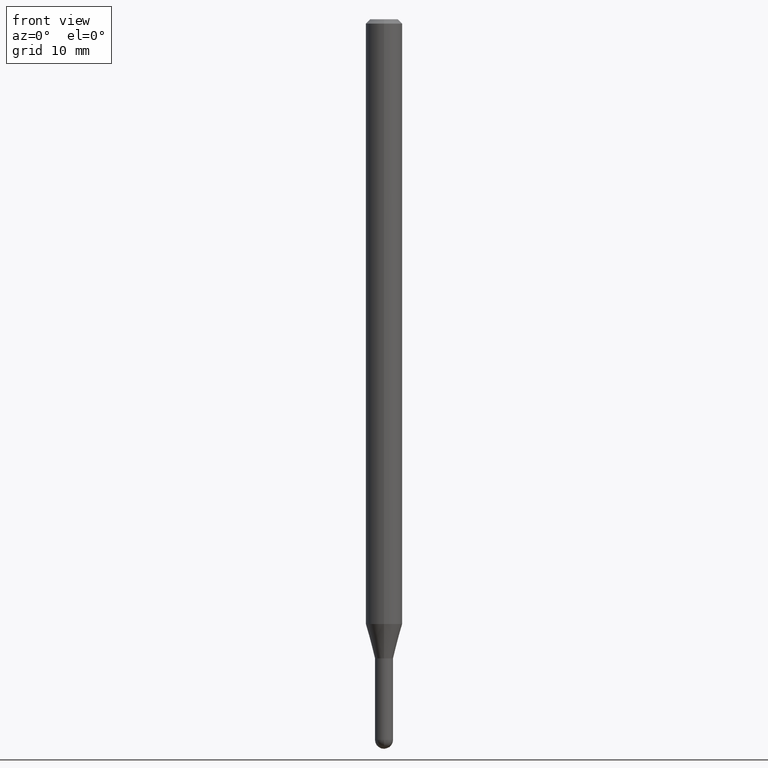
[diagram: clean part render]
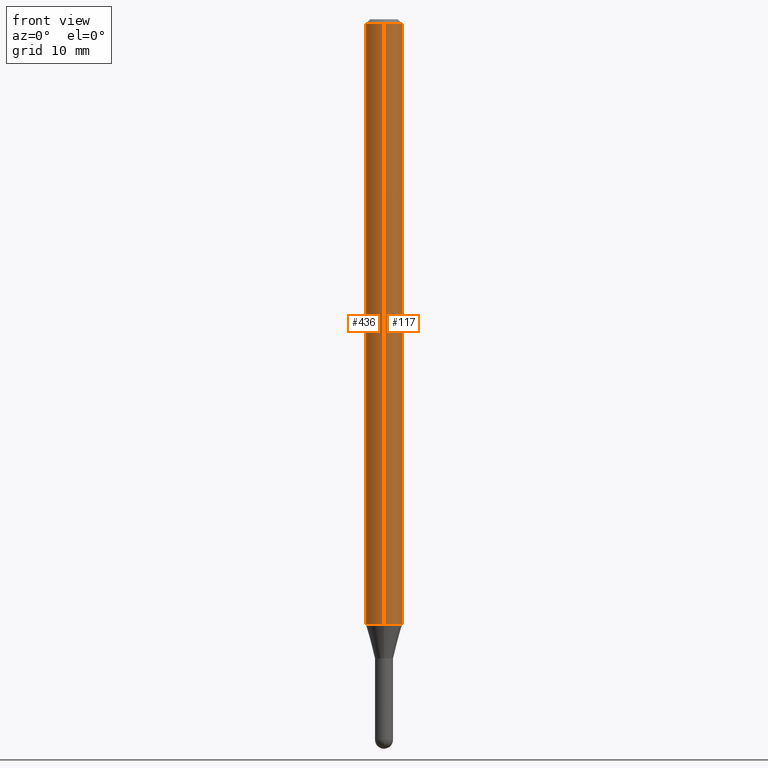
[diagram: same view with one multi-face feature highlighted, each face labeled with its STEP entity id]
A machine part, front view. The highlighted faces form ONE feature: a constant-radius fillet chain: 2 tangent blend faces with common blend radius 1.5875 mm. The faces share edges in the B-rep.
Their STEP definitions:
[1] entity #117 (Cylinder):
#4 = EDGE_LOOP ( 'NONE', ( #88, #420, #488, #507 ) ) ;
#12 = DIRECTION ( 'NONE',  ( -2.445487892702933065E-29, 3.491454005863323886E-15, 1.000000000000000000 ) ) ;
#34 = EDGE_CURVE ( 'NONE', #66, #173, #321, .T. ) ;
#46 = DIRECTION ( 'NONE',  ( -2.445487892702932784E-29, 3.491454005863323491E-15, 1.000000000000000000 ) ) ;
#52 = CARTESIAN_POINT ( 'NONE',  ( 4.440892098501135963E-16, 0.06249999999999995143, -0.01500000000000028394 ) ) ;
#65 = CARTESIAN_POINT ( 'NONE',  ( 4.440892098501130047E-16, 0.06249999999999273498, -2.072440399561584101 ) ) ;
#66 = VERTEX_POINT ( 'NONE', #307 ) ;
#68 = CARTESIAN_POINT ( 'NONE',  ( -4.364351673553410837E-16, -0.06250000000000725808, -2.072440399561583657 ) ) ;
#74 = DIRECTION ( 'NONE',  ( -6.982962677686265922E-15, -1.000000000000000000, 3.491454005863323886E-15 ) ) ;
#79 = CARTESIAN_POINT ( 'NONE',  ( 4.440892098500625669E-16, 0.06250000000000000000, -2.182158753664577429E-16 ) ) ;
#82 = EDGE_CURVE ( 'NONE', #85, #66, #429, .T. ) ;
#85 = VERTEX_POINT ( 'NONE', #68 ) ;
#88 = ORIENTED_EDGE ( 'NONE', *, *, #175, .T. ) ;
#117 = ADVANCED_FACE ( 'NONE', ( #157 ), #197, .T. ) ;
#128 = AXIS2_PLACEMENT_3D ( 'NONE', #512, #160, #74 ) ;
#140 = AXIS2_PLACEMENT_3D ( 'NONE', #419, #12, #204 ) ;
#149 = CARTESIAN_POINT ( 'NONE',  ( 3.668231839054415852E-31, -5.237181008795008558E-17, -0.01500000000000006710 ) ) ;
#154 = DIRECTION ( 'NONE',  ( -2.445487892702933065E-29, 3.491454005863323886E-15, 1.000000000000000000 ) ) ;
#157 = FACE_OUTER_BOUND ( 'NONE', #4, .T. ) ;
#160 = DIRECTION ( 'NONE',  ( -2.445487892702933065E-29, 3.491454005863323886E-15, 1.000000000000000000 ) ) ;
#173 = VERTEX_POINT ( 'NONE', #52 ) ;
#175 = EDGE_CURVE ( 'NONE', #85, #385, #250, .T. ) ;
#197 = CYLINDRICAL_SURFACE ( 'NONE', #128, 0.06250000000000000000 ) ;
#204 = DIRECTION ( 'NONE',  ( -6.982962677686265922E-15, -1.000000000000000000, 4.370956789862821150E-15 ) ) ;
#226 = EDGE_CURVE ( 'NONE', #385, #173, #373, .T. ) ;
#250 = CIRCLE ( 'NONE', #140, 0.06250000000000000000 ) ;
#276 = AXIS2_PLACEMENT_3D ( 'NONE', #149, #154, #426 ) ;
#307 = CARTESIAN_POINT ( 'NONE',  ( -4.364351673553912750E-16, -0.06250000000000005551, -0.01499999999999984852 ) ) ;
#321 = CIRCLE ( 'NONE', #276, 0.06250000000000000000 ) ;
#362 = VECTOR ( 'NONE', #46, 39.37007874015748143 ) ;
#373 = LINE ( 'NONE', #79, #362 ) ;
#385 = VERTEX_POINT ( 'NONE', #65 ) ;
#394 = DIRECTION ( 'NONE',  ( -2.445487892702932784E-29, 3.491454005863323491E-15, 1.000000000000000000 ) ) ;
#419 = CARTESIAN_POINT ( 'NONE',  ( 5.068127905476282688E-29, -7.235830334962279648E-15, -2.072440399561584101 ) ) ;
#420 = ORIENTED_EDGE ( 'NONE', *, *, #226, .T. ) ;
#426 = DIRECTION ( 'NONE',  ( -6.982962677686265922E-15, -1.000000000000000000, 3.483106191921935554E-15 ) ) ;
#429 = LINE ( 'NONE', #430, #492 ) ;
#430 = CARTESIAN_POINT ( 'NONE',  ( -4.364351673553916201E-16, -0.06250000000000000000, 2.182158753664577429E-16 ) ) ;
#488 = ORIENTED_EDGE ( 'NONE', *, *, #34, .F. ) ;
#492 = VECTOR ( 'NONE', #394, 39.37007874015748143 ) ;
#507 = ORIENTED_EDGE ( 'NONE', *, *, #82, .F. ) ;
#512 = CARTESIAN_POINT ( 'NONE',  ( 0.000000000000000000, 0.000000000000000000, 0.000000000000000000 ) ) ;
[2] entity #436 (Cylinder):
#14 = EDGE_CURVE ( 'NONE', #173, #66, #314, .T. ) ;
#46 = DIRECTION ( 'NONE',  ( -2.445487892702932784E-29, 3.491454005863323491E-15, 1.000000000000000000 ) ) ;
#52 = CARTESIAN_POINT ( 'NONE',  ( 4.440892098501135963E-16, 0.06249999999999995143, -0.01500000000000028394 ) ) ;
#65 = CARTESIAN_POINT ( 'NONE',  ( 4.440892098501130047E-16, 0.06249999999999273498, -2.072440399561584101 ) ) ;
#66 = VERTEX_POINT ( 'NONE', #307 ) ;
#68 = CARTESIAN_POINT ( 'NONE',  ( -4.364351673553410837E-16, -0.06250000000000725808, -2.072440399561583657 ) ) ;
#79 = CARTESIAN_POINT ( 'NONE',  ( 4.440892098500625669E-16, 0.06250000000000000000, -2.182158753664577429E-16 ) ) ;
#82 = EDGE_CURVE ( 'NONE', #85, #66, #429, .T. ) ;
#85 = VERTEX_POINT ( 'NONE', #68 ) ;
#109 = DIRECTION ( 'NONE',  ( -2.445487892702933065E-29, 3.491454005863323886E-15, 1.000000000000000000 ) ) ;
#136 = CYLINDRICAL_SURFACE ( 'NONE', #499, 0.06250000000000000000 ) ;
#137 = ORIENTED_EDGE ( 'NONE', *, *, #14, .F. ) ;
#173 = VERTEX_POINT ( 'NONE', #52 ) ;
#177 = CIRCLE ( 'NONE', #254, 0.06250000000000000000 ) ;
#181 = DIRECTION ( 'NONE',  ( -2.445487892702933065E-29, 3.491454005863323886E-15, 1.000000000000000000 ) ) ;
#217 = CARTESIAN_POINT ( 'NONE',  ( 3.668231839054415852E-31, -5.237181008795008558E-17, -0.01500000000000006710 ) ) ;
#226 = EDGE_CURVE ( 'NONE', #385, #173, #373, .T. ) ;
#254 = AXIS2_PLACEMENT_3D ( 'NONE', #269, #498, #392 ) ;
#269 = CARTESIAN_POINT ( 'NONE',  ( 5.068127905476282688E-29, -7.235830334962279648E-15, -2.072440399561584101 ) ) ;
#297 = DIRECTION ( 'NONE',  ( -6.982962677686265922E-15, -1.000000000000000000, 3.491454005863323886E-15 ) ) ;
#303 = FACE_OUTER_BOUND ( 'NONE', #497, .T. ) ;
#307 = CARTESIAN_POINT ( 'NONE',  ( -4.364351673553912750E-16, -0.06250000000000005551, -0.01499999999999984852 ) ) ;
#314 = CIRCLE ( 'NONE', #340, 0.06250000000000000000 ) ;
#338 = ORIENTED_EDGE ( 'NONE', *, *, #226, .F. ) ;
#340 = AXIS2_PLACEMENT_3D ( 'NONE', #217, #109, #501 ) ;
#362 = VECTOR ( 'NONE', #46, 39.37007874015748143 ) ;
#373 = LINE ( 'NONE', #79, #362 ) ;
#383 = ORIENTED_EDGE ( 'NONE', *, *, #82, .T. ) ;
#384 = CARTESIAN_POINT ( 'NONE',  ( 0.000000000000000000, 0.000000000000000000, 0.000000000000000000 ) ) ;
#385 = VERTEX_POINT ( 'NONE', #65 ) ;
#392 = DIRECTION ( 'NONE',  ( -6.982962677686265922E-15, -1.000000000000000000, 4.370956789862821150E-15 ) ) ;
#394 = DIRECTION ( 'NONE',  ( -2.445487892702932784E-29, 3.491454005863323491E-15, 1.000000000000000000 ) ) ;
#407 = EDGE_CURVE ( 'NONE', #385, #85, #177, .T. ) ;
#429 = LINE ( 'NONE', #430, #492 ) ;
#430 = CARTESIAN_POINT ( 'NONE',  ( -4.364351673553916201E-16, -0.06250000000000000000, 2.182158753664577429E-16 ) ) ;
#436 = ADVANCED_FACE ( 'NONE', ( #303 ), #136, .T. ) ;
#454 = ORIENTED_EDGE ( 'NONE', *, *, #407, .T. ) ;
#492 = VECTOR ( 'NONE', #394, 39.37007874015748143 ) ;
#497 = EDGE_LOOP ( 'NONE', ( #338, #454, #383, #137 ) ) ;
#498 = DIRECTION ( 'NONE',  ( -2.445487892702933065E-29, 3.491454005863323886E-15, 1.000000000000000000 ) ) ;
#499 = AXIS2_PLACEMENT_3D ( 'NONE', #384, #181, #297 ) ;
#501 = DIRECTION ( 'NONE',  ( -6.982962677686265922E-15, -1.000000000000000000, 3.483106191921935554E-15 ) ) ;